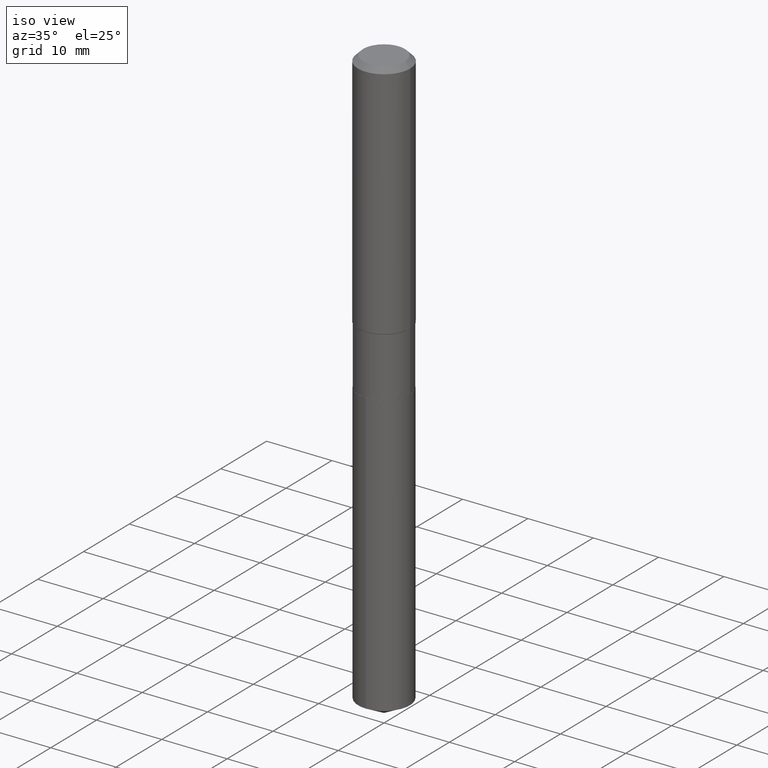
[diagram: clean part render]
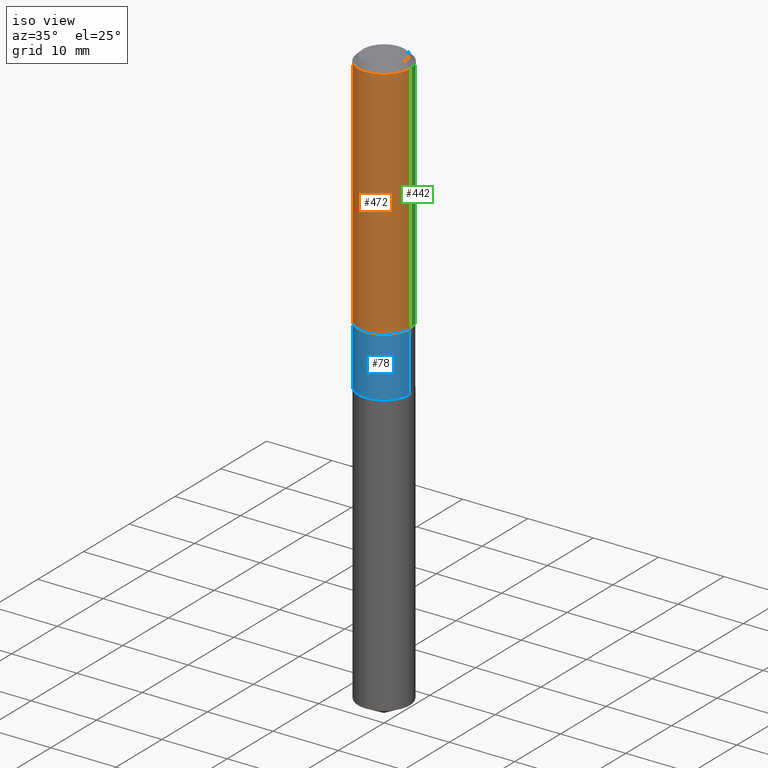
[diagram: same view with three faces highlighted in distinct colors, each labeled with its STEP entity id]
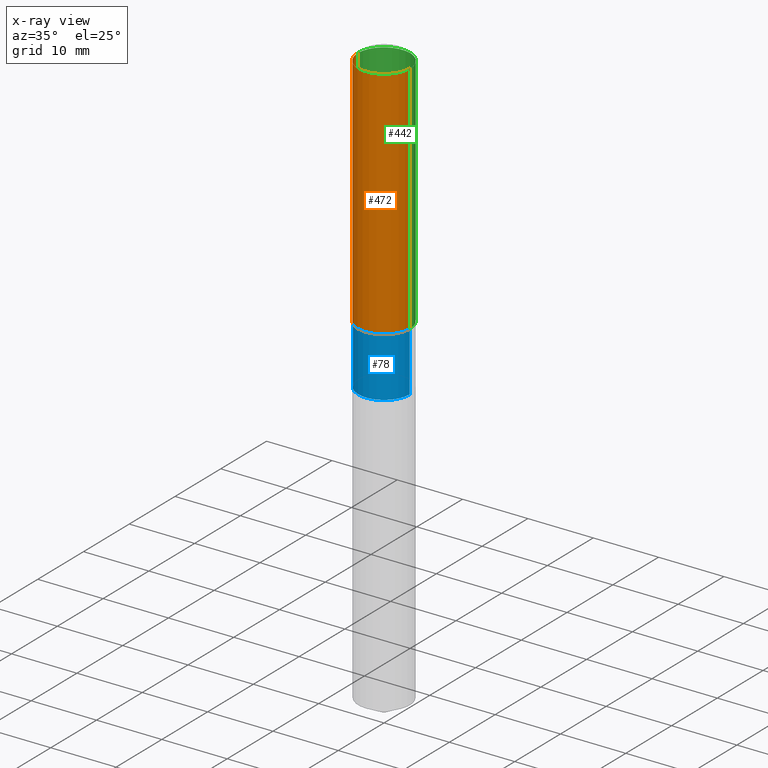
[diagram: x-ray of the same camera — body ghosted, the three highlighted faces saturated]
A machine part, iso view with three faces highlighted in distinct colors.
The next image is the same camera in x-ray (body ghosted, the three faces saturated) — at least one of them is partly hidden behind the body in this view.
Their STEP definitions:

[orange] entity #472 — the highlighted cylindrical surface (edge-blend (fillet) strip) has radius 4.0005 mm, axis along (-0, 0, 1).
#4 = DIRECTION ( 'NONE',  ( -2.445468806185136877E-29, 3.491481338843145188E-15, 1.000000000000000000 ) ) ;
#7 = ORIENTED_EDGE ( 'NONE', *, *, #162, .F. ) ;
#50 = DIRECTION ( 'NONE',  ( -2.445468806185136597E-29, 3.491481338843145583E-15, 1.000000000000000000 ) ) ;
#55 = VERTEX_POINT ( 'NONE', #247 ) ;
#65 = VECTOR ( 'NONE', #4, 39.37007874015748143 ) ;
#88 = FACE_OUTER_BOUND ( 'NONE', #175, .T. ) ;
#104 = AXIS2_PLACEMENT_3D ( 'NONE', #185, #440, #329 ) ;
#141 = ORIENTED_EDGE ( 'NONE', *, *, #408, .T. ) ;
#144 = EDGE_CURVE ( 'NONE', #433, #383, #206, .T. ) ;
#155 = CARTESIAN_POINT ( 'NONE',  ( -0.1575000000000000844, 1.119104808822158392E-15, -7.747322767151481189E-30 ) ) ;
#156 = ORIENTED_EDGE ( 'NONE', *, *, #423, .F. ) ;
#162 = EDGE_CURVE ( 'NONE', #55, #463, #201, .T. ) ;
#171 = AXIS2_PLACEMENT_3D ( 'NONE', #406, #485, #220 ) ;
#175 = EDGE_LOOP ( 'NONE', ( #156, #343, #141, #7 ) ) ;
#185 = CARTESIAN_POINT ( 'NONE',  ( 3.539571550072366058E-29, -5.053570089841568113E-15, -1.447399999999999798 ) ) ;
#201 = CIRCLE ( 'NONE', #171, 0.1575000000000000011 ) ;
#206 = CIRCLE ( 'NONE', #104, 0.1575000000000001676 ) ;
#220 = DIRECTION ( 'NONE',  ( 1.000000000000000000, -6.982962677686265922E-15, 0.000000000000000000 ) ) ;
#229 = LINE ( 'NONE', #155, #255 ) ;
#233 = LINE ( 'NONE', #263, #65 ) ;
#240 = CARTESIAN_POINT ( 'NONE',  ( 0.000000000000000000, 0.000000000000000000, 0.000000000000000000 ) ) ;
#247 = CARTESIAN_POINT ( 'NONE',  ( -0.1575000000000000011, -1.462671067185405196E-15, -0.03150000000000019451 ) ) ;
#255 = VECTOR ( 'NONE', #265, 39.37007874015748143 ) ;
#263 = CARTESIAN_POINT ( 'NONE',  ( 0.1575000000000000844, -1.099816621735587677E-15, 7.679978421878603638E-30 ) ) ;
#265 = DIRECTION ( 'NONE',  ( -2.445468806185136877E-29, 3.491481338843145188E-15, 1.000000000000000000 ) ) ;
#302 = CARTESIAN_POINT ( 'NONE',  ( -0.1575000000000001676, -3.934465281019408143E-15, -1.447399999999999798 ) ) ;
#322 = CARTESIAN_POINT ( 'NONE',  ( 0.1575000000000000011, -1.209798283909146741E-15, -0.03150000000000019451 ) ) ;
#329 = DIRECTION ( 'NONE',  ( 1.000000000000000000, -6.982962677686267499E-15, 0.000000000000000000 ) ) ;
#343 = ORIENTED_EDGE ( 'NONE', *, *, #144, .T. ) ;
#363 = AXIS2_PLACEMENT_3D ( 'NONE', #240, #50, #473 ) ;
#383 = VERTEX_POINT ( 'NONE', #424 ) ;
#406 = CARTESIAN_POINT ( 'NONE',  ( 7.703226739483226971E-31, -1.099816621735597538E-16, -0.03150000000000019451 ) ) ;
#408 = EDGE_CURVE ( 'NONE', #383, #463, #233, .T. ) ;
#423 = EDGE_CURVE ( 'NONE', #433, #55, #229, .T. ) ;
#424 = CARTESIAN_POINT ( 'NONE',  ( 0.1575000000000001676, -6.153386711577156382E-15, -1.447399999999999798 ) ) ;
#428 = CYLINDRICAL_SURFACE ( 'NONE', #363, 0.1575000000000000844 ) ;
#433 = VERTEX_POINT ( 'NONE', #302 ) ;
#440 = DIRECTION ( 'NONE',  ( -2.445468806185136597E-29, 3.491481338843145583E-15, 1.000000000000000000 ) ) ;
#463 = VERTEX_POINT ( 'NONE', #322 ) ;
#472 = ADVANCED_FACE ( 'NONE', ( #88 ), #428, .T. ) ;
#473 = DIRECTION ( 'NONE',  ( 1.000000000000000000, -6.982962677686267499E-15, 4.876176775795936353E-29 ) ) ;
#485 = DIRECTION ( 'NONE',  ( -2.445468806185136597E-29, 3.491481338843145583E-15, 1.000000000000000000 ) ) ;

[blue] entity #78 — the highlighted cylindrical surface (edge-blend (fillet) strip) has radius 3.9497 mm, axis along (-0, 0, 1).
#1 = CARTESIAN_POINT ( 'NONE',  ( -0.1554999999999999438, 1.104893954106955390E-15, -7.648944065346376022E-30 ) ) ;
#2 = DIRECTION ( 'NONE',  ( -2.445468806185136597E-29, 3.491481338843145583E-15, 1.000000000000000000 ) ) ;
#3 = EDGE_CURVE ( 'NONE', #74, #77, #224, .T. ) ;
#24 = DIRECTION ( 'NONE',  ( 1.000000000000000000, -6.982962677686269077E-15, 0.000000000000000000 ) ) ;
#27 = CARTESIAN_POINT ( 'NONE',  ( 3.544462487684736704E-29, -5.060553052519254127E-15, -1.449399999999999800 ) ) ;
#47 = ORIENTED_EDGE ( 'NONE', *, *, #228, .F. ) ;
#68 = DIRECTION ( 'NONE',  ( -2.445468806185136877E-29, 3.491481338843145188E-15, 1.000000000000000000 ) ) ;
#74 = VERTEX_POINT ( 'NONE', #214 ) ;
#77 = VERTEX_POINT ( 'NONE', #216 ) ;
#78 = ADVANCED_FACE ( 'NONE', ( #323 ), #312, .T. ) ;
#119 = CARTESIAN_POINT ( 'NONE',  ( 4.417983945254068051E-29, -6.307710186754027552E-15, -1.806600000000000428 ) ) ;
#157 = DIRECTION ( 'NONE',  ( 1.000000000000000000, -6.982962677686266711E-15, 0.000000000000000000 ) ) ;
#163 = CARTESIAN_POINT ( 'NONE',  ( 0.1554999999999999993, -7.393560883134242215E-15, -1.806600000000000428 ) ) ;
#168 = CARTESIAN_POINT ( 'NONE',  ( 0.000000000000000000, 0.000000000000000000, 0.000000000000000000 ) ) ;
#177 = DIRECTION ( 'NONE',  ( -2.445468806185136597E-29, 3.491481338843145583E-15, 1.000000000000000000 ) ) ;
#203 = VECTOR ( 'NONE', #379, 39.37007874015748143 ) ;
#214 = CARTESIAN_POINT ( 'NONE',  ( -0.1554999999999999438, -4.579237665529685647E-15, -1.449399999999999800 ) ) ;
#216 = CARTESIAN_POINT ( 'NONE',  ( 0.1554999999999999438, -6.146403748899468790E-15, -1.449399999999999800 ) ) ;
#224 = CIRCLE ( 'NONE', #331, 0.1554999999999999438 ) ;
#228 = EDGE_CURVE ( 'NONE', #422, #74, #366, .T. ) ;
#231 = EDGE_LOOP ( 'NONE', ( #47, #266, #290, #390 ) ) ;
#237 = CARTESIAN_POINT ( 'NONE',  ( -0.1554999999999999993, -4.579237665529685647E-15, -1.806600000000000428 ) ) ;
#266 = ORIENTED_EDGE ( 'NONE', *, *, #357, .T. ) ;
#275 = LINE ( 'NONE', #335, #203 ) ;
#290 = ORIENTED_EDGE ( 'NONE', *, *, #350, .T. ) ;
#294 = AXIS2_PLACEMENT_3D ( 'NONE', #168, #354, #471 ) ;
#312 = CYLINDRICAL_SURFACE ( 'NONE', #294, 0.1554999999999999438 ) ;
#323 = FACE_OUTER_BOUND ( 'NONE', #231, .T. ) ;
#331 = AXIS2_PLACEMENT_3D ( 'NONE', #27, #177, #24 ) ;
#335 = CARTESIAN_POINT ( 'NONE',  ( 0.1554999999999999438, -1.085850696380214268E-15, 7.582454886362678420E-30 ) ) ;
#341 = VERTEX_POINT ( 'NONE', #163 ) ;
#350 = EDGE_CURVE ( 'NONE', #341, #77, #275, .T. ) ;
#354 = DIRECTION ( 'NONE',  ( -2.445468806185136597E-29, 3.491481338843145583E-15, 1.000000000000000000 ) ) ;
#357 = EDGE_CURVE ( 'NONE', #422, #341, #395, .T. ) ;
#366 = LINE ( 'NONE', #1, #430 ) ;
#379 = DIRECTION ( 'NONE',  ( -2.445468806185136877E-29, 3.491481338843145188E-15, 1.000000000000000000 ) ) ;
#390 = ORIENTED_EDGE ( 'NONE', *, *, #3, .F. ) ;
#395 = CIRCLE ( 'NONE', #439, 0.1554999999999999993 ) ;
#422 = VERTEX_POINT ( 'NONE', #237 ) ;
#430 = VECTOR ( 'NONE', #68, 39.37007874015748143 ) ;
#439 = AXIS2_PLACEMENT_3D ( 'NONE', #119, #2, #157 ) ;
#471 = DIRECTION ( 'NONE',  ( 1.000000000000000000, -6.982962677686268288E-15, 4.876176775795936353E-29 ) ) ;

[green] entity #442 — the highlighted cylindrical surface (edge-blend (fillet) strip) has radius 4.0005 mm, axis along (-0, 0, 1).
#4 = DIRECTION ( 'NONE',  ( -2.445468806185136877E-29, 3.491481338843145188E-15, 1.000000000000000000 ) ) ;
#5 = ORIENTED_EDGE ( 'NONE', *, *, #408, .F. ) ;
#12 = AXIS2_PLACEMENT_3D ( 'NONE', #316, #401, #100 ) ;
#18 = DIRECTION ( 'NONE',  ( 1.000000000000000000, -6.982962677686267499E-15, 4.876176775795936353E-29 ) ) ;
#43 = EDGE_CURVE ( 'NONE', #463, #55, #369, .T. ) ;
#55 = VERTEX_POINT ( 'NONE', #247 ) ;
#65 = VECTOR ( 'NONE', #4, 39.37007874015748143 ) ;
#100 = DIRECTION ( 'NONE',  ( 1.000000000000000000, -6.982962677686265922E-15, 0.000000000000000000 ) ) ;
#105 = DIRECTION ( 'NONE',  ( -2.445468806185136597E-29, 3.491481338843145583E-15, 1.000000000000000000 ) ) ;
#109 = AXIS2_PLACEMENT_3D ( 'NONE', #257, #105, #152 ) ;
#118 = EDGE_CURVE ( 'NONE', #383, #433, #378, .T. ) ;
#132 = CYLINDRICAL_SURFACE ( 'NONE', #355, 0.1575000000000000844 ) ;
#140 = DIRECTION ( 'NONE',  ( -2.445468806185136597E-29, 3.491481338843145583E-15, 1.000000000000000000 ) ) ;
#152 = DIRECTION ( 'NONE',  ( 1.000000000000000000, -6.982962677686267499E-15, 0.000000000000000000 ) ) ;
#155 = CARTESIAN_POINT ( 'NONE',  ( -0.1575000000000000844, 1.119104808822158392E-15, -7.747322767151481189E-30 ) ) ;
#205 = ORIENTED_EDGE ( 'NONE', *, *, #118, .T. ) ;
#213 = ORIENTED_EDGE ( 'NONE', *, *, #43, .F. ) ;
#229 = LINE ( 'NONE', #155, #255 ) ;
#233 = LINE ( 'NONE', #263, #65 ) ;
#247 = CARTESIAN_POINT ( 'NONE',  ( -0.1575000000000000011, -1.462671067185405196E-15, -0.03150000000000019451 ) ) ;
#255 = VECTOR ( 'NONE', #265, 39.37007874015748143 ) ;
#257 = CARTESIAN_POINT ( 'NONE',  ( 3.539571550072366058E-29, -5.053570089841568113E-15, -1.447399999999999798 ) ) ;
#263 = CARTESIAN_POINT ( 'NONE',  ( 0.1575000000000000844, -1.099816621735587677E-15, 7.679978421878603638E-30 ) ) ;
#265 = DIRECTION ( 'NONE',  ( -2.445468806185136877E-29, 3.491481338843145188E-15, 1.000000000000000000 ) ) ;
#302 = CARTESIAN_POINT ( 'NONE',  ( -0.1575000000000001676, -3.934465281019408143E-15, -1.447399999999999798 ) ) ;
#303 = EDGE_LOOP ( 'NONE', ( #205, #451, #213, #5 ) ) ;
#316 = CARTESIAN_POINT ( 'NONE',  ( 7.703226739483226971E-31, -1.099816621735597538E-16, -0.03150000000000019451 ) ) ;
#322 = CARTESIAN_POINT ( 'NONE',  ( 0.1575000000000000011, -1.209798283909146741E-15, -0.03150000000000019451 ) ) ;
#340 = FACE_OUTER_BOUND ( 'NONE', #303, .T. ) ;
#355 = AXIS2_PLACEMENT_3D ( 'NONE', #479, #140, #18 ) ;
#369 = CIRCLE ( 'NONE', #12, 0.1575000000000000011 ) ;
#378 = CIRCLE ( 'NONE', #109, 0.1575000000000001676 ) ;
#383 = VERTEX_POINT ( 'NONE', #424 ) ;
#401 = DIRECTION ( 'NONE',  ( -2.445468806185136597E-29, 3.491481338843145583E-15, 1.000000000000000000 ) ) ;
#408 = EDGE_CURVE ( 'NONE', #383, #463, #233, .T. ) ;
#423 = EDGE_CURVE ( 'NONE', #433, #55, #229, .T. ) ;
#424 = CARTESIAN_POINT ( 'NONE',  ( 0.1575000000000001676, -6.153386711577156382E-15, -1.447399999999999798 ) ) ;
#433 = VERTEX_POINT ( 'NONE', #302 ) ;
#442 = ADVANCED_FACE ( 'NONE', ( #340 ), #132, .T. ) ;
#451 = ORIENTED_EDGE ( 'NONE', *, *, #423, .T. ) ;
#463 = VERTEX_POINT ( 'NONE', #322 ) ;
#479 = CARTESIAN_POINT ( 'NONE',  ( 0.000000000000000000, 0.000000000000000000, 0.000000000000000000 ) ) ;